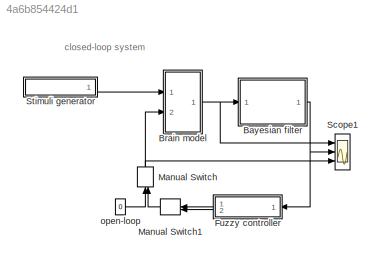
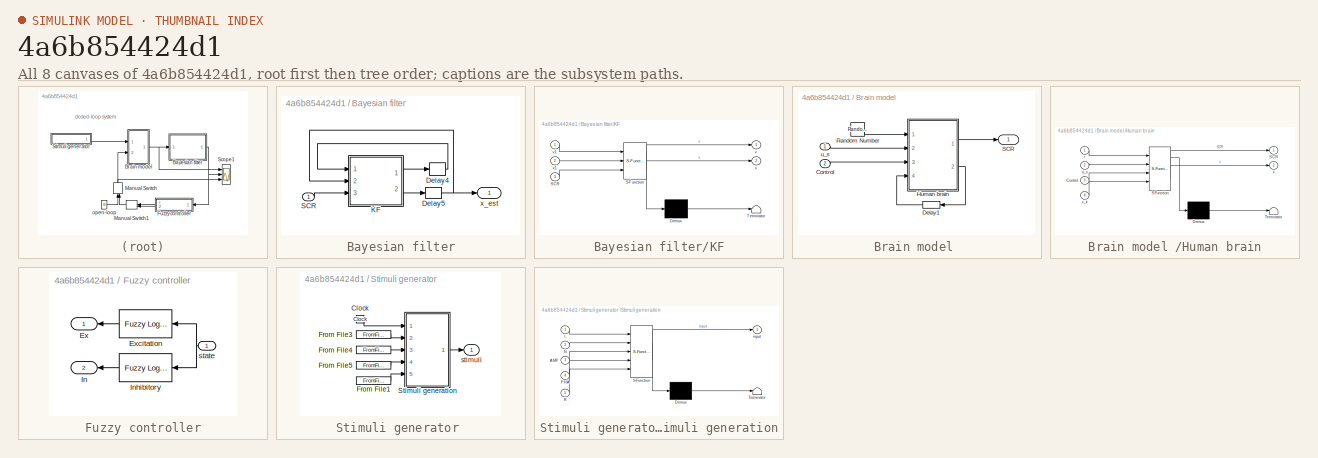
[diagram: thumbnail index - all 8 canvases of the model, root first then tree order]
MODEL slx_4a6b854424d1
KIND model
CONFIG AbsTol = auto
CONFIG EnableMultiTasking = off
CONFIG FixedStep = 0.1
CONFIG MaxStep = 0.1
CONFIG MinStep = auto
CONFIG RelTol = 1e-3
CONFIG SampleTimeConstraint = Unconstrained
CONFIG Solver = ode45
CONFIG SolverName = ode45
CONFIG StartTime = 0.0
CONFIG StopTime = 600
BLOCK [SubSystem] Bayesian filter
  Ports = [1, 1]
  RequestExecContextInheritance = off
BLOCK [Delay] Bayesian filter/Delay4
  DelayLength = 1
  InitialCondition = 0.000418027082743929
  InputPortMap = u0
  Ports = [1, 1]
BLOCK [Delay] Bayesian filter/Delay5
  DelayLength = 1
  InitialCondition = 0.9
  InputPortMap = u0
  Ports = [1, 1]
BLOCK [SubSystem] Bayesian filter/KF
  ErrorFcn = Stateflow.Translate.translate
  PermitHierarchicalResolution = ExplicitOnly
  Ports = [3, 2]
  RequestExecContextInheritance = off
  SFBlockType = MATLAB Function
  TreatAsAtomicUnit = on
BLOCK [Demux] Bayesian filter/KF/ Demux 
  Outputs = 1
  Ports = [1, 1]
BLOCK [S-Function] Bayesian filter/KF/ SFunction 
  EnableBusSupport = on
  FunctionName = sf_sfun
  PortCounts = [3 3]
  Ports = [3, 3]
  SFcnIsStateOwnerBlock = off
  SFunctionDeploymentMode = off
  Tag = Stateflow S-Function 1
BLOCK [Terminator] Bayesian filter/KF/ Terminator 
BLOCK [Inport] Bayesian filter/KF/SCR
  IconDisplay = Port number
  Port = 3
BLOCK [Outport] Bayesian filter/KF/v
  IconDisplay = Port number
  VectorParamsAs1DForOutWhenUnconnected = off
BLOCK [Inport] Bayesian filter/KF/v1
  IconDisplay = Port number
BLOCK [Outport] Bayesian filter/KF/x
  IconDisplay = Port number
  Port = 2
  VectorParamsAs1DForOutWhenUnconnected = off
BLOCK [Inport] Bayesian filter/KF/x1
  IconDisplay = Port number
  Port = 2
BLOCK [Inport] Bayesian filter/SCR
  IconDisplay = Port number
BLOCK [Outport] Bayesian filter/x_est
  IconDisplay = Port number
  VectorParamsAs1DForOutWhenUnconnected = off
BLOCK [SubSystem] Brain model 
  Ports = [2, 1]
  RequestExecContextInheritance = off
BLOCK [Inport] Brain model /Control
  IconDisplay = Port number
  Port = 2
BLOCK [Delay] Brain model /Delay1
  DelayLength = 1
  InitialCondition = 0.9
  InputPortMap = u0
  Ports = [1, 1]
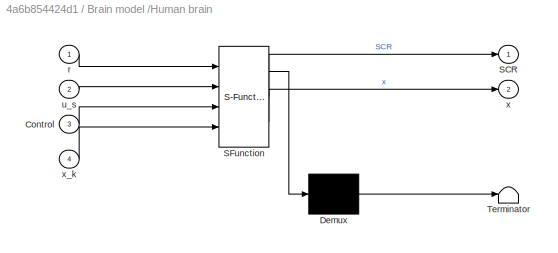
BLOCK [SubSystem] Brain model /Human brain
  ErrorFcn = Stateflow.Translate.translate
  PermitHierarchicalResolution = ExplicitOnly
  Ports = [4, 2]
  RequestExecContextInheritance = off
  SFBlockType = MATLAB Function
  TreatAsAtomicUnit = on
BLOCK [Demux] Brain model /Human brain/ Demux 
  Outputs = 1
  Ports = [1, 1]
BLOCK [S-Function] Brain model /Human brain/ SFunction 
  EnableBusSupport = on
  FunctionName = sf_sfun
  PortCounts = [4 3]
  Ports = [4, 3]
  SFcnIsStateOwnerBlock = off
  SFunctionDeploymentMode = off
  Tag = Stateflow S-Function 5
BLOCK [Terminator] Brain model /Human brain/ Terminator 
BLOCK [Inport] Brain model /Human brain/Control
  IconDisplay = Port number
  Port = 3
BLOCK [Outport] Brain model /Human brain/SCR
  IconDisplay = Port number
  VectorParamsAs1DForOutWhenUnconnected = off
BLOCK [Inport] Brain model /Human brain/r
  IconDisplay = Port number
BLOCK [Inport] Brain model /Human brain/u_s
  IconDisplay = Port number
  Port = 2
BLOCK [Outport] Brain model /Human brain/x
  IconDisplay = Port number
  Port = 2
  VectorParamsAs1DForOutWhenUnconnected = off
BLOCK [Inport] Brain model /Human brain/x_k
  IconDisplay = Port number
  Port = 4
BLOCK [RandomNumber] Brain model /Random Number
  Seed = 52
  Variance = 0.0001
BLOCK [Outport] Brain model /SCR 
  IconDisplay = Port number
  VectorParamsAs1DForOutWhenUnconnected = off
BLOCK [Inport] Brain model /u_s
  IconDisplay = Port number
BLOCK [SubSystem] Fuzzy controller
  Ports = [1, 2]
  RequestExecContextInheritance = off
BLOCK [Outport] Fuzzy controller/Ex 
  IconDisplay = Port number
  VectorParamsAs1DForOutWhenUnconnected = off
BLOCK [Reference] Fuzzy controller/Excitation  REF=fuzblock/Fuzzy Logic   (lib defined in mdl_858b3b3e7478)
Controller
  Ports = [1, 1]
  SourceBlock = fuzblock/Fuzzy Logic \nController
  SourceProductBaseCode = FL
  SourceProductName = Fuzzy Logic Toolbox
  SourceType = Fuzzy Inference System
BLOCK [Outport] Fuzzy controller/In 
  IconDisplay = Port number
  Port = 2
  VectorParamsAs1DForOutWhenUnconnected = off
BLOCK [Reference] Fuzzy controller/Inhibitory  REF=fuzblock/Fuzzy Logic   (lib defined in mdl_858b3b3e7478)
Controller
  Ports = [1, 1]
  SourceBlock = fuzblock/Fuzzy Logic \nController
  SourceProductBaseCode = FL
  SourceProductName = Fuzzy Logic Toolbox
  SourceType = Fuzzy Inference System
BLOCK [Inport] Fuzzy controller/state
  IconDisplay = Port number
BLOCK [ManualSwitch] Manual Switch
  CurrentSetting = 0
BLOCK [ManualSwitch] Manual Switch1
  CurrentSetting = 0
BLOCK [Scope] Scope1
  Floating = off
  NumInputPorts = 3
  Ports = [3]
  ScopeSpecificationString = Simulink.scopes.TimeScopeBlockCfg('CurrentConfiguration', extmgr.ConfigurationSet(extmgr.Configuration('Core','General UI',true),extmgr.Configuration('Core','Source UI',true),extmgr.Configuration('Sources','WiredSimulink',true,'DataLoggingVariableName','ScopeData1'),extmgr.Configuration('Visuals','Time Domain',true,'SerializedDisplays',{struct('MinYLimReal','-0.125','MaxYLimReal','1.125','YLabelRe...<+3529ch>
BLOCK [SubSystem] Stimuli generator 
  Ports = [0, 1]
  RequestExecContextInheritance = off
BLOCK [Clock] Stimuli generator /Clock
  Decimation = 10000
BLOCK [FromFile] Stimuli generator /From File1
  FileName = R1.mat
BLOCK [FromFile] Stimuli generator /From File3
  FileName = N1.mat
BLOCK [FromFile] Stimuli generator /From File4
  FileName = AMP1.mat
BLOCK [FromFile] Stimuli generator /From File5
  FileName = PHA1.mat
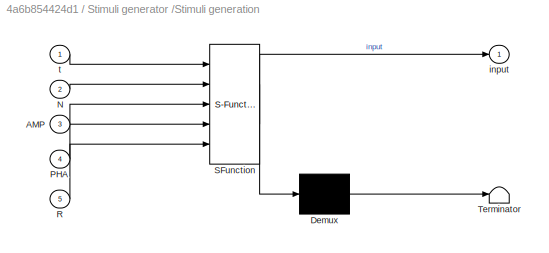
BLOCK [SubSystem] Stimuli generator /Stimuli generation
  ErrorFcn = Stateflow.Translate.translate
  PermitHierarchicalResolution = ExplicitOnly
  Ports = [5, 1]
  RequestExecContextInheritance = off
  SFBlockType = MATLAB Function
  TreatAsAtomicUnit = on
BLOCK [Demux] Stimuli generator /Stimuli generation/ Demux 
  Outputs = 1
  Ports = [1, 1]
BLOCK [S-Function] Stimuli generator /Stimuli generation/ SFunction 
  EnableBusSupport = on
  FunctionName = sf_sfun
  PortCounts = [5 2]
  Ports = [5, 2]
  SFcnIsStateOwnerBlock = off
  SFunctionDeploymentMode = off
  Tag = Stateflow S-Function 7
BLOCK [Terminator] Stimuli generator /Stimuli generation/ Terminator 
BLOCK [Inport] Stimuli generator /Stimuli generation/AMP
  IconDisplay = Port number
  Port = 3
BLOCK [Inport] Stimuli generator /Stimuli generation/N
  IconDisplay = Port number
  Port = 2
BLOCK [Inport] Stimuli generator /Stimuli generation/PHA
  IconDisplay = Port number
  Port = 4
BLOCK [Inport] Stimuli generator /Stimuli generation/R
  IconDisplay = Port number
  Port = 5
BLOCK [Outport] Stimuli generator /Stimuli generation/input
  IconDisplay = Port number
  VectorParamsAs1DForOutWhenUnconnected = off
BLOCK [Inport] Stimuli generator /Stimuli generation/t
  IconDisplay = Port number
BLOCK [Outport] Stimuli generator /stimuli 
  IconDisplay = Port number
  VectorParamsAs1DForOutWhenUnconnected = off
BLOCK [Constant] open-loop
  Value = 0
ANNOTATION (root): closed-loop system
LINE Bayesian filter/Delay4:1 -> Bayesian filter/KF:1
NET Bayesian filter/Delay5:1 -> Bayesian filter/KF:2, Bayesian filter/x_est:1
LINE Bayesian filter/KF:1 -> Bayesian filter/Delay4:1
LINE Bayesian filter/KF:2 -> Bayesian filter/Delay5:1
LINE Bayesian filter/SCR:1 -> Bayesian filter/KF:3
NET Bayesian filter:1 -> Fuzzy controller:1, Scope1:2
LINE Brain model /Control:1 -> Brain model /Human brain:3
LINE Brain model /Delay1:1 -> Brain model /Human brain:4
LINE Brain model /Human brain:1 -> Brain model /SCR :1
LINE Brain model /Human brain:2 -> Brain model /Delay1:1
LINE Brain model /Random Number:1 -> Brain model /Human brain:1
LINE Brain model /u_s:1 -> Brain model /Human brain:2
NET Brain model :1 -> Bayesian filter:1, Scope1:1
LINE Fuzzy controller/Excitation:1 -> Fuzzy controller/Ex :1
LINE Fuzzy controller/Inhibitory:1 -> Fuzzy controller/In :1
NET Fuzzy controller/state:1 -> Fuzzy controller/Excitation:1, Fuzzy controller/Inhibitory:1
LINE Fuzzy controller:1 -> Manual Switch1:1
LINE Fuzzy controller:2 -> Manual Switch1:2
LINE Manual Switch1:1 -> Manual Switch:2
NET Manual Switch:1 -> Brain model :2, Scope1:3
LINE Stimuli generator /Clock:1 -> Stimuli generator /Stimuli generation:1
LINE Stimuli generator /From File1:1 -> Stimuli generator /Stimuli generation:5
LINE Stimuli generator /From File3:1 -> Stimuli generator /Stimuli generation:2
LINE Stimuli generator /From File4:1 -> Stimuli generator /Stimuli generation:3
LINE Stimuli generator /From File5:1 -> Stimuli generator /Stimuli generation:4
LINE Stimuli generator /Stimuli generation:1 -> Stimuli generator /stimuli :1
LINE Stimuli generator :1 -> Brain model :1
LINE open-loop:1 -> Manual Switch:1
note: NET lines group one-source signal fan-out (src -> all destinations, sorted); 1:1 wires keep LINE
CHART Bayesian filter/KF states=1 transitions=1
  STATE_LABEL 'eML_blk_kernel()'
  STATE_LABEL 'SCRIPT:\nfunction [v,x]= fcn(v1,x1,SCR)\n\nn = SCR;\nM = 1;\nveps = zeros(1, M + 1);\n\n%%% use the corresponding alpha value and veps_guess associated with each simulated profile\n%%%% make sure to use the corresponding intial values for the blocks in the\n%%%% Bayesian filter subsystem\n\n\n%%%%% (1) x_0 = 0.9\nalpha  = -1.9;\nveps_guess =0.000418027082743929;\n\n% %%%%% (2) x_0 = 0.4\n% alpha  = -1.8;\n% veps_gu...<+1208ch>'
CHART Brain model /Human brain states=1 transitions=1
  STATE_LABEL 'eML_blk_kernel()'
  STATE_LABEL 'SCRIPT:\nfunction [SCR,x]  = fcn(r,u_s,Control,x_k)\n\nx = x_k + u_s + Control + r ;\n\n\n%%% Initial value and alpha parametr asscoitaed with each six simulated\n%%% profiles (use the corresponding alpha value for this block) (use the initila value in the brain model block)\n\n%%%%% (1) x_0 = 0.9\nalpha  = -1.9;\n\n% %%%%% (2) x_0 = 0.4\n% alpha  = -1.8;\n\n% %%%%% (3) x_0 = 0.4\n% alpha  = -1.95;\n\n% %%%%% (4) x...<+209ch>'
CHART Stimuli generator
/Stimuli generation states=1 transitions=1
  STATE_LABEL 'eML_blk_kernel()'
  STATE_LABEL 'SCRIPT:\nfunction input = fcn(t,N,AMP,PHA,R)\n%%%% for other subject, make sure to change the numbers in the\n%%%% corresponding blocks (i.e., N,AMP,PHA,R)\na =R(1,1);\nb =R(2,1);\nc =R(3,1);\nd =R(4,1);\nT1 = 300;\nif t < T1 %%% high arousal stimuli \n    Y1 = 0;\n    for i=1:length(N)\n        Y1 = AMP(i)*cos(N(i)*t + PHA(i)) + Y1 ;\n    end\n    input = Y1;\nelse      %%%% low arousal stimuli\n    input  =  a*...<+40ch>'
